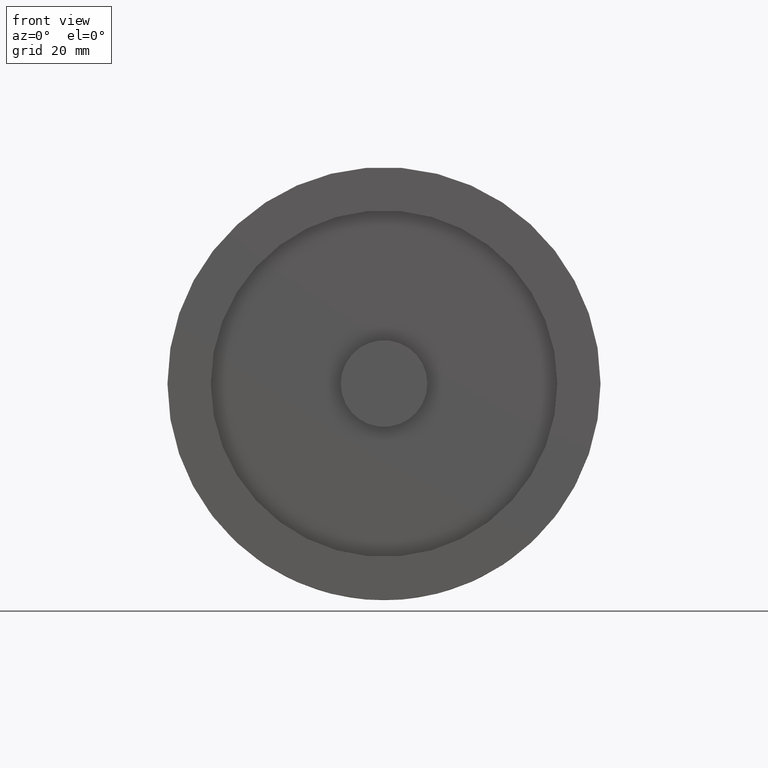
[diagram: clean part render]
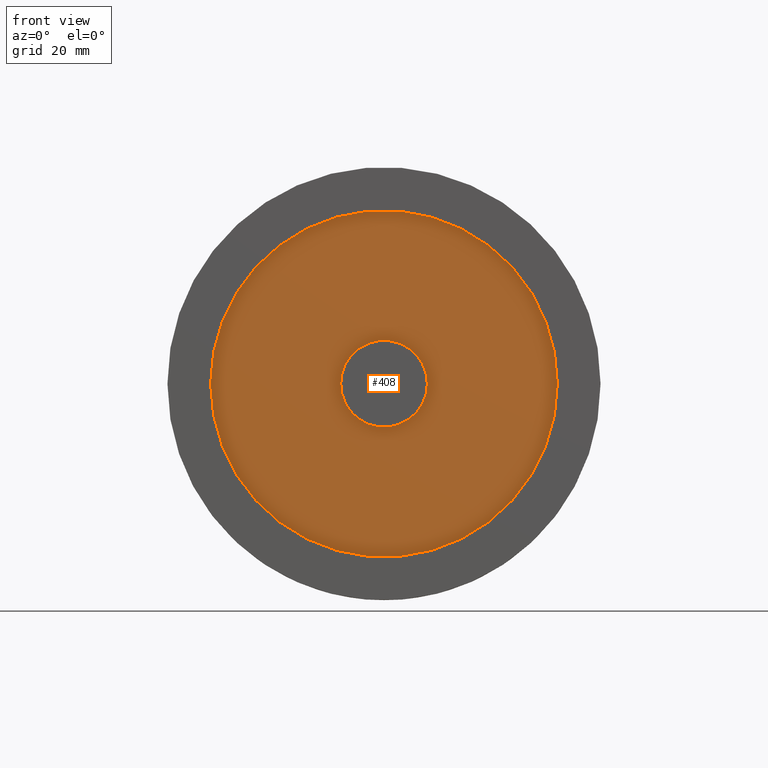
[diagram: same view with one face highlighted and labeled with its STEP entity id]
A machine part, front view. The second image highlights one B-rep face of the part: STEP entity #408.
In plain terms, the highlighted planar face has unit normal (0, -1, 0).
Its self-contained STEP definition (entity closure, byte-faithful):
#76=FACE_BOUND('',#113,.T.);
#87=FACE_OUTER_BOUND('',#112,.T.);
#112=EDGE_LOOP('',(#323,#324));
#113=EDGE_LOOP('',(#325,#326));
#150=CIRCLE('',#496,8.);
#151=CIRCLE('',#497,8.);
#152=CIRCLE('',#499,32.);
#153=CIRCLE('',#500,32.);
#189=VERTEX_POINT('',#856);
#190=VERTEX_POINT('',#857);
#191=VERTEX_POINT('',#862);
#192=VERTEX_POINT('',#863);
#237=EDGE_CURVE('',#189,#190,#150,.T.);
#238=EDGE_CURVE('',#190,#189,#151,.T.);
#240=EDGE_CURVE('',#191,#192,#152,.T.);
#241=EDGE_CURVE('',#192,#191,#153,.T.);
#323=ORIENTED_EDGE('',*,*,#240,.F.);
#324=ORIENTED_EDGE('',*,*,#241,.F.);
#325=ORIENTED_EDGE('',*,*,#237,.T.);
#326=ORIENTED_EDGE('',*,*,#238,.T.);
#392=PLANE('',#498);
#408=ADVANCED_FACE('',(#87,#76),#392,.T.);
#496=AXIS2_PLACEMENT_3D('',#858,#596,#597);
#497=AXIS2_PLACEMENT_3D('',#859,#598,#599);
#498=AXIS2_PLACEMENT_3D('',#861,#601,#602);
#499=AXIS2_PLACEMENT_3D('',#864,#603,#604);
#500=AXIS2_PLACEMENT_3D('',#865,#605,#606);
#596=DIRECTION('center_axis',(-1.29031692906312E-13,1.,0.));
#597=DIRECTION('ref_axis',(-1.,-1.2903169675847E-13,0.));
#598=DIRECTION('center_axis',(-1.29031692906312E-13,1.,0.));
#599=DIRECTION('ref_axis',(-1.,-1.2903169675847E-13,0.));
#601=DIRECTION('center_axis',(1.29031692906312E-13,-1.,0.));
#602=DIRECTION('ref_axis',(0.,0.,-1.));
#603=DIRECTION('center_axis',(-1.29031692906312E-13,1.,0.));
#604=DIRECTION('ref_axis',(-1.,-1.2903169675847E-13,0.));
#605=DIRECTION('center_axis',(-1.29031692906312E-13,1.,0.));
#606=DIRECTION('ref_axis',(-1.,-1.2903169675847E-13,0.));
#856=CARTESIAN_POINT('',(-8.00000000000025,2.00000002572272,0.));
#857=CARTESIAN_POINT('',(7.99999999999975,2.00000002572478,-9.79717439317883E-16));
#858=CARTESIAN_POINT('Origin',(-2.51402050984052E-13,2.00000002572375,0.));
#859=CARTESIAN_POINT('Origin',(-2.51402050984052E-13,2.00000002572375,0.));
#861=CARTESIAN_POINT('Origin',(-20.0000000000002,2.00000002572117,0.));
#862=CARTESIAN_POINT('',(-32.0000000000002,2.00000002571962,0.));
#863=CARTESIAN_POINT('',(31.9999999999997,2.00000002572788,-3.91886975727152E-15));
#864=CARTESIAN_POINT('Origin',(-2.51402050984052E-13,2.00000002572375,0.));
#865=CARTESIAN_POINT('Origin',(-2.51402050984052E-13,2.00000002572375,0.));